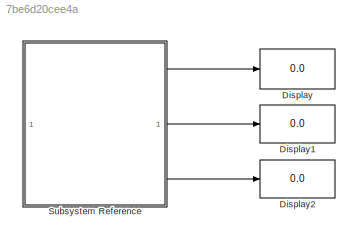
MODEL slx_7be6d20cee4a
KIND model
CONFIG AbsTol = auto
CONFIG EnableMultiTasking = on
CONFIG FixedStep = auto
CONFIG MaxStep = auto
CONFIG MinStep = auto
CONFIG RelTol = 1e-3
CONFIG SampleTimeConstraint = Unconstrained
CONFIG SolverName = FixedStepAuto
CONFIG StartTime = 0.0
CONFIG StopTime = inf
BLOCK [Display] Display
  Decimation = 1
BLOCK [Display] Display1
  Decimation = 1
BLOCK [Display] Display2
  Decimation = 1
BLOCK [SubSystem] Subsystem Reference
  ReferencedSubsystem = Sub_Encoders
LINE Subsystem Reference:1 -> Display:1
LINE Subsystem Reference:2 -> Display1:1
LINE Subsystem Reference:3 -> Display2:1
